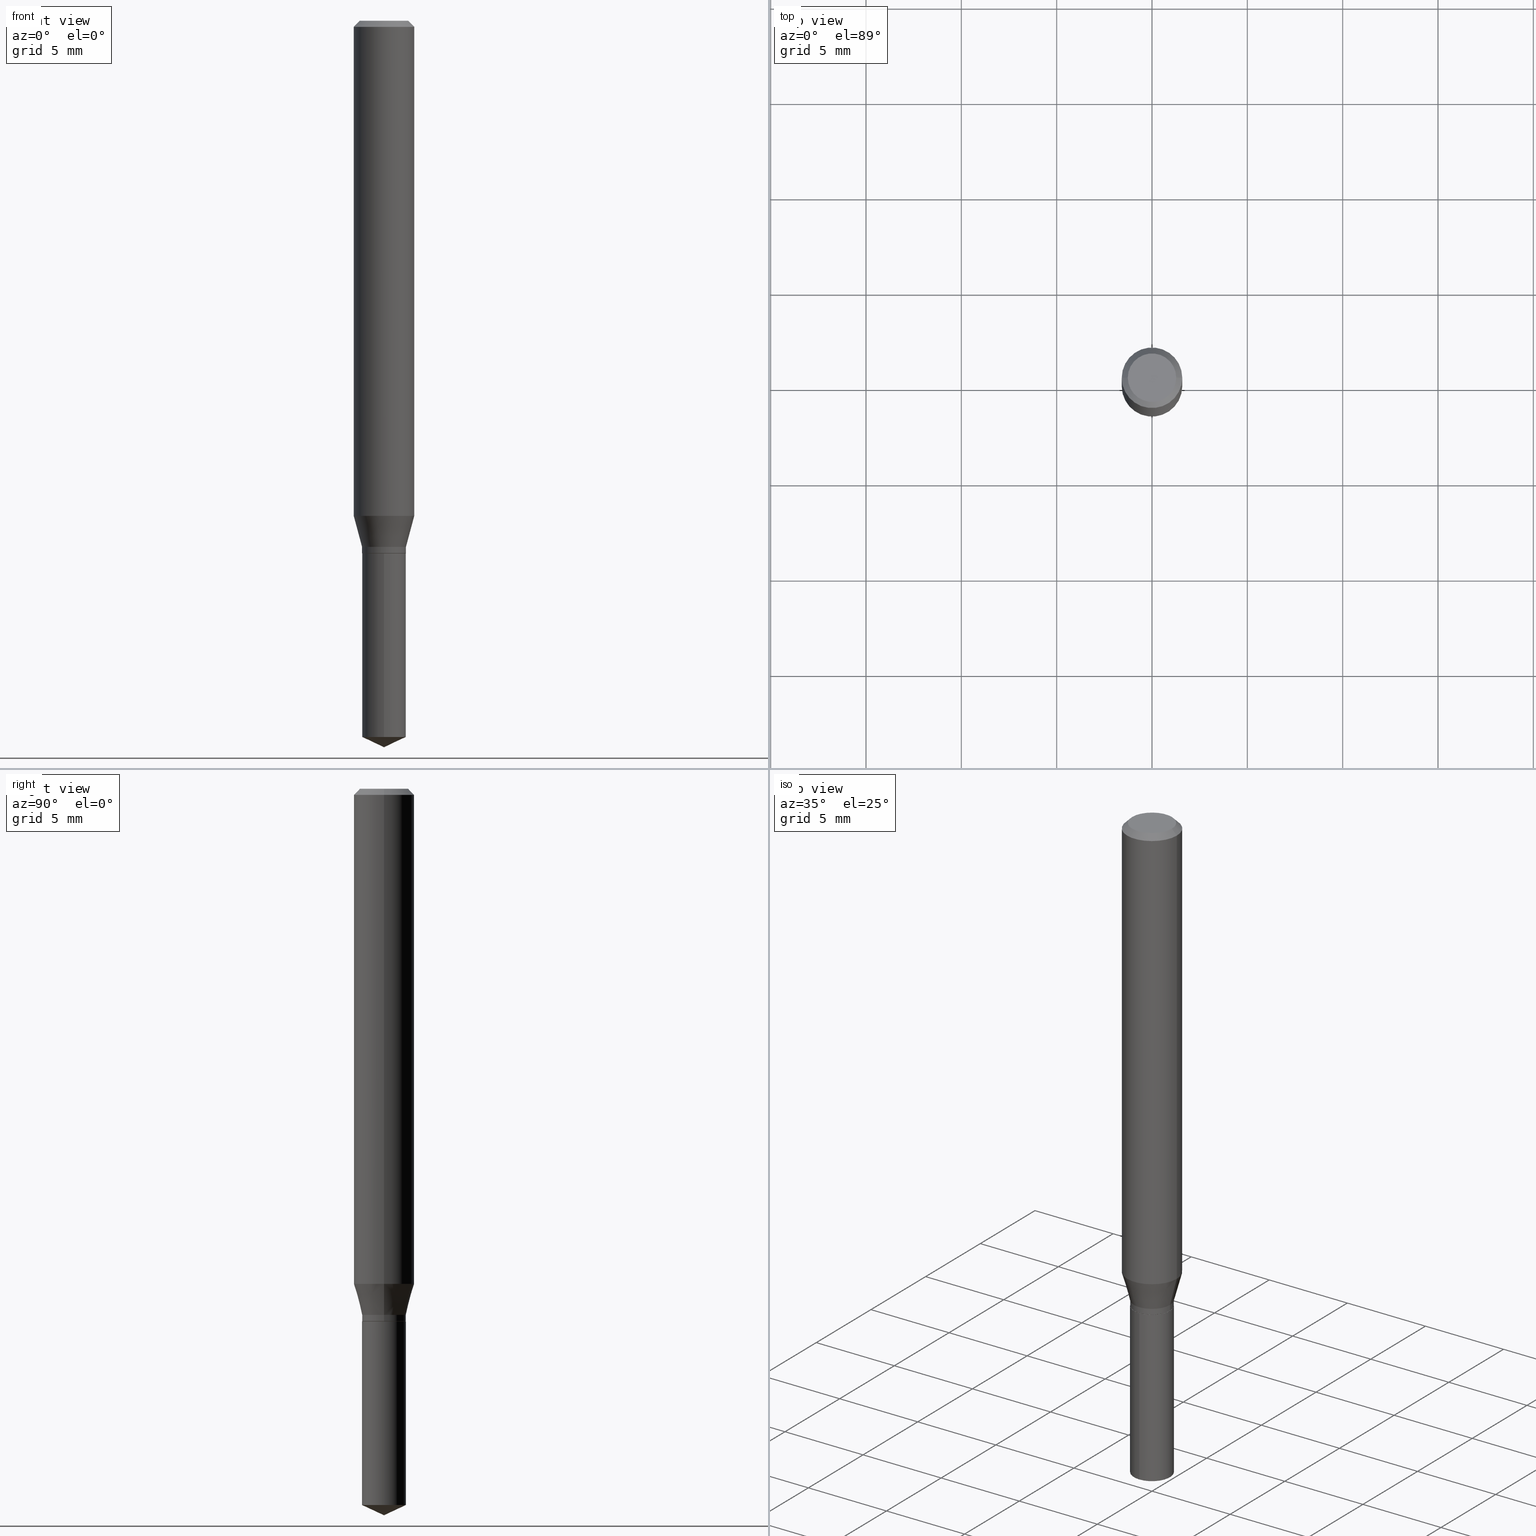
[diagram: canonical four-view strip — front | top / right | iso, engineering-drawing reading convention]
A machine part, canonical four-view strip (front | top / right | iso — engineering-drawing reading convention). The complete STEP part file that produces these views, byte-faithful:
ISO-10303-21;
HEADER;
FILE_DESCRIPTION (( 'STEP AP203' ),
    '1' );
FILE_NAME ('07199.STEP',
    '2024-04-23T19:58:30',
    ( '' ),
    ( '' ),
    'SwSTEP 2.0',
    'SolidWorks 2023',
    '' );
FILE_SCHEMA (( 'CONFIG_CONTROL_DESIGN' ));
ENDSEC;

DATA;
#1 = DIRECTION ( 'NONE',  ( 1.000000000000000000, -6.982962677686266711E-15, 4.876176775795936353E-29 ) ) ;
#2 = CARTESIAN_POINT ( 'NONE',  ( 0.04999999999999999584, -4.077247707424184705E-16, -1.592040838888913461E-18 ) ) ;
#3 = ORIENTED_EDGE ( 'NONE', *, *, #490, .T. ) ;
#4 = APPROVAL_ROLE ( '' ) ;
#5 = CARTESIAN_POINT ( 'NONE',  ( 3.218758592993522054E-16, 0.04529999999999615584, -1.100000000000000089 ) ) ;
#6 = VERTEX_POINT ( 'NONE', #390 ) ;
#7 = VECTOR ( 'NONE', #322, 39.37007874015748854 ) ;
#8 = ORIENTED_EDGE ( 'NONE', *, *, #337, .F. ) ;
#9 = COORDINATED_UNIVERSAL_TIME_OFFSET ( 5, 0, .BEHIND. ) ;
#10 = ORIENTED_EDGE ( 'NONE', *, *, #288, .T. ) ;
#11 = ORIENTED_EDGE ( 'NONE', *, *, #392, .T. ) ;
#12 = VERTEX_POINT ( 'NONE', #137 ) ;
#13 = LINE ( 'NONE', #223, #466 ) ;
#14 = DIRECTION ( 'NONE',  ( 1.000000000000000000, -6.982962677686271444E-15, 0.000000000000000000 ) ) ;
#15 = DIRECTION ( 'NONE',  ( 0.7071067811865453523, -7.319954787623248157E-15, -0.7071067811865496822 ) ) ;
#16 = CARTESIAN_POINT ( 'NONE',  ( -9.260740279983036507E-28, 1.322265303911854087E-13, 37.87007874015748143 ) ) ;
#17 = EDGE_CURVE ( 'NONE', #340, #304, #405, .T. ) ;
#18 = CARTESIAN_POINT ( 'NONE',  ( -0.04529999999999999999, 3.218758592993253841E-16, -2.228277595885472214E-30 ) ) ;
#19 = AXIS2_PLACEMENT_3D ( 'NONE', #432, #420, #310 ) ;
#20 = DIRECTION ( 'NONE',  ( 1.000000000000000000, -6.982962677686271444E-15, 0.000000000000000000 ) ) ;
#21 = AXIS2_PLACEMENT_3D ( 'NONE', #364, #103, #403 ) ;
#22 = CARTESIAN_POINT ( 'NONE',  ( 0.04479999999999999954, -4.153466200687805374E-15, -1.100000000000000089 ) ) ;
#23 = DIRECTION ( 'NONE',  ( -2.445468806185136877E-29, 3.491481338843145188E-15, 1.000000000000000000 ) ) ;
#24 = ADVANCED_FACE ( 'NONE', ( #316 ), #352, .T. ) ;
#25 = DIRECTION ( 'NONE',  ( 1.000000000000000000, -6.982962677686265922E-15, 4.875957971899673662E-29 ) ) ;
#26 = CLOSED_SHELL ( 'NONE', ( #279, #353, #139, #105, #361 ) ) ;
#27 = AXIS2_PLACEMENT_3D ( 'NONE', #174, #407, #214 ) ;
#28 = CYLINDRICAL_SURFACE ( 'NONE', #245, 0.06250000000000006939 ) ;
#29 = ORIENTED_EDGE ( 'NONE', *, *, #90, .F. ) ;
#30 = CARTESIAN_POINT ( 'NONE',  ( 0.000000000000000000, 0.000000000000000000, 0.000000000000000000 ) ) ;
#31 = PERSON ( 'UNSPECIFIED', 'UNSPECIFIED', 'UNSPECIFIED', ('UNSPECIFIED'), ('UNSPECIFIED'), ('UNSPECIFIED') ) ;
#32 = ADVANCED_FACE ( 'NONE', ( #136 ), #357, .T. ) ;
#33 = SHAPE_DEFINITION_REPRESENTATION ( #60, #232 ) ;
#34 = DIRECTION ( 'NONE',  ( 1.000000000000000000, -6.982962677686266711E-15, 4.876176775795935793E-29 ) ) ;
#35 = VERTEX_POINT ( 'NONE', #170 ) ;
#36 = CIRCLE ( 'NONE', #218, 0.04529999999999999999 ) ;
#37 = CONICAL_SURFACE ( 'NONE', #467, 0.04479999999999999954, 0.7853981633974141952 ) ;
#38 = COORDINATED_UNIVERSAL_TIME_OFFSET ( 5, 0, .BEHIND. ) ;
#39 = FACE_OUTER_BOUND ( 'NONE', #429, .T. ) ;
#40 = ORIENTED_EDGE ( 'NONE', *, *, #365, .T. ) ;
#41 = CARTESIAN_POINT ( 'NONE',  ( 2.690015686803650369E-29, -3.840629472727460101E-15, -1.100000000000000089 ) ) ;
#42 = EDGE_LOOP ( 'NONE', ( #309, #269, #197, #213 ) ) ;
#43 = DIRECTION ( 'NONE',  ( 1.000000000000000000, 0.000000000000000000, 0.000000000000000000 ) ) ;
#44 = CARTESIAN_POINT ( 'NONE',  ( 2.656757311039532670E-29, -3.793145326519194416E-15, -1.086400000000000254 ) ) ;
#45 = CC_DESIGN_PERSON_AND_ORGANIZATION_ASSIGNMENT ( #120, #123, ( #217 ) ) ;
#46 = ORIENTED_EDGE ( 'NONE', *, *, #148, .T. ) ;
#47 = CC_DESIGN_SECURITY_CLASSIFICATION ( #426, ( #141 ) ) ;
#48 = PERSON_AND_ORGANIZATION ( #31, #99 ) ;
#49 = FACE_OUTER_BOUND ( 'NONE', #250, .T. ) ;
#50 = VERTEX_POINT ( 'NONE', #281 ) ;
#51 = EDGE_LOOP ( 'NONE', ( #154, #428, #295, #344 ) ) ;
#52 = EDGE_CURVE ( 'NONE', #304, #340, #308, .T. ) ;
#53 = EDGE_LOOP ( 'NONE', ( #129, #3, #126, #385 ) ) ;
#54 = AXIS2_PLACEMENT_3D ( 'NONE', #317, #396, #200 ) ;
#55 = VECTOR ( 'NONE', #302, 39.37007874015748143 ) ;
#56 = CARTESIAN_POINT ( 'NONE',  ( 2.688792952400557567E-29, -3.838883732058038598E-15, -1.099499999999999922 ) ) ;
#57 = LINE ( 'NONE', #277, #198 ) ;
#58 = CC_DESIGN_PERSON_AND_ORGANIZATION_ASSIGNMENT ( #85, #374, ( #426 ) ) ;
#59 = CARTESIAN_POINT ( 'NONE',  ( 3.616519583258762254E-29, -5.163506375328735718E-15, -1.478876263085578735 ) ) ;
#60 = PRODUCT_DEFINITION_SHAPE ( 'NONE', 'NONE',  #217 ) ;
#61 = DIRECTION ( 'NONE',  ( -6.982962677686268288E-15, -1.000000000000000000, 3.520397390770455053E-15 ) ) ;
#62 = APPLICATION_CONTEXT ( 'configuration controlled 3d designs of mechanical parts and assemblies' ) ;
#63 = DIRECTION ( 'NONE',  ( -2.445399690415121530E-29, 3.491580316559632610E-15, 1.000000000000000000 ) ) ;
#64 =( NAMED_UNIT ( * ) SI_UNIT ( $, .STERADIAN. ) SOLID_ANGLE_UNIT ( ) );
#65 = CARTESIAN_POINT ( 'NONE',  ( 2.656757311039532670E-29, -3.793145326519194416E-15, -1.086400000000000254 ) ) ;
#66 = CONICAL_SURFACE ( 'NONE', #175, 0.04529999999999999999, 0.2617993877991498519 ) ;
#67 = DIRECTION ( 'NONE',  ( -6.982962677686266711E-15, -1.000000000000000000, 6.030569522437666757E-15 ) ) ;
#68 = EDGE_CURVE ( 'NONE', #298, #128, #152, .T. ) ;
#69 = DIRECTION ( 'NONE',  ( -6.982962677686266711E-15, -1.000000000000000000, 3.015284761218833379E-15 ) ) ;
#70 = LINE ( 'NONE', #247, #7 ) ;
#71 = AXIS2_PLACEMENT_3D ( 'NONE', #472, #243, #208 ) ;
#72 = FACE_OUTER_BOUND ( 'NONE', #268, .T. ) ;
#73 = PERSON_AND_ORGANIZATION_ROLE ( 'creator' ) ;
#74 = CARTESIAN_POINT ( 'NONE',  ( 2.690015686803650369E-29, -3.840629472727460101E-15, -1.100000000000000089 ) ) ;
#75 = DATE_TIME_ROLE ( 'creation_date' ) ;
#76 = DIRECTION ( 'NONE',  ( -2.445468806185136597E-29, 3.491481338843145583E-15, 1.000000000000000000 ) ) ;
#77 = ORIENTED_EDGE ( 'NONE', *, *, #238, .T. ) ;
#78 = AXIS2_PLACEMENT_3D ( 'NONE', #435, #296, #458 ) ;
#79 = CIRCLE ( 'NONE', #212, 0.06250000000000001388 ) ;
#80 = CARTESIAN_POINT ( 'NONE',  ( 0.04529999999999999999, -4.109473535818381906E-15, -1.086400000000000254 ) ) ;
#81 = EDGE_CURVE ( 'NONE', #448, #272, #477, .T. ) ;
#82 = DATE_TIME_ROLE ( 'classification_date' ) ;
#83 = DIRECTION ( 'NONE',  ( -2.445468806185136877E-29, 3.491481338843145188E-15, 1.000000000000000000 ) ) ;
#84 = EDGE_LOOP ( 'NONE', ( #233, #410, #8, #430 ) ) ;
#85 = PERSON_AND_ORGANIZATION ( #31, #99 ) ;
#86 = CARTESIAN_POINT ( 'NONE',  ( 0.04479999999999999954, -4.153466200687805374E-15, -1.100000000000000089 ) ) ;
#87 = ORIENTED_EDGE ( 'NONE', *, *, #323, .F. ) ;
#88 = CIRCLE ( 'NONE', #363, 0.04999999999999999584 ) ;
#89 = EDGE_LOOP ( 'NONE', ( #114, #335, #179, #196 ) ) ;
#90 = EDGE_CURVE ( 'NONE', #6, #291, #107, .T. ) ;
#91 = ORIENTED_EDGE ( 'NONE', *, *, #484, .T. ) ;
#92 = ORIENTED_EDGE ( 'NONE', *, *, #68, .T. ) ;
#93 = CC_DESIGN_APPROVAL ( #210, ( #217 ) ) ;
#94 = DIRECTION ( 'NONE',  ( 1.000000000000000000, -6.982962677686271444E-15, 0.000000000000000000 ) ) ;
#95 = DIRECTION ( 'NONE',  ( 0.2588190451025211281, 1.565188264969622954E-15, 0.9659258262890679791 ) ) ;
#96 = DIRECTION ( 'NONE',  ( -2.445399690415121530E-29, 3.491580316559632610E-15, 1.000000000000000000 ) ) ;
#97 = FACE_OUTER_BOUND ( 'NONE', #51, .T. ) ;
#98 = CYLINDRICAL_SURFACE ( 'NONE', #388, 0.04529999999999999999 ) ;
#99 = ORGANIZATION ( 'UNSPECIFIED', 'UNSPECIFIED', '' ) ;
#100 = DIRECTION ( 'NONE',  ( -2.445468806185136597E-29, 3.491481338843145583E-15, 1.000000000000000000 ) ) ;
#101 = VECTOR ( 'NONE', #334, 39.37007874015748143 ) ;
#102 = CC_DESIGN_PERSON_AND_ORGANIZATION_ASSIGNMENT ( #219, #462, ( #276 ) ) ;
#103 = DIRECTION ( 'NONE',  ( -2.445468806185136597E-29, 3.491481338843145583E-15, 1.000000000000000000 ) ) ;
#104 = DIRECTION ( 'NONE',  ( 1.000000000000000000, -6.982962677686265922E-15, 0.000000000000000000 ) ) ;
#105 = ADVANCED_FACE ( 'NONE', ( #282 ), #98, .T. ) ;
#106 = LINE ( 'NONE', #256, #270 ) ;
#107 = CIRCLE ( 'NONE', #441, 0.04529999999999999999 ) ;
#108 = APPLICATION_CONTEXT ( 'configuration controlled 3d designs of mechanical parts and assemblies' ) ;
#109 = APPROVAL_DATE_TIME ( #377, #402 ) ;
#110 = DIRECTION ( 'NONE',  ( -2.445468806185136597E-29, 3.491481338843145583E-15, 1.000000000000000000 ) ) ;
#111 = ORIENTED_EDGE ( 'NONE', *, *, #337, .T. ) ;
#112 = SECURITY_CLASSIFICATION_LEVEL ( 'unclassified' ) ;
#113 = DIRECTION ( 'NONE',  ( -2.445468806185136597E-29, 3.491481338843145583E-15, 1.000000000000000000 ) ) ;
#114 = ORIENTED_EDGE ( 'NONE', *, *, #431, .T. ) ;
#115 = PERSON_AND_ORGANIZATION ( #31, #99 ) ;
#116 = LINE ( 'NONE', #5, #306 ) ;
#117 = CIRCLE ( 'NONE', #456, 0.04999999999999999584 ) ;
#118 = EDGE_CURVE ( 'NONE', #291, #6, #406, .T. ) ;
#119 = CONICAL_SURFACE ( 'NONE', #236, 84.42940631927430672, 1.134464013796315784 ) ;
#120 = PERSON_AND_ORGANIZATION ( #31, #99 ) ;
#121 = FACE_OUTER_BOUND ( 'NONE', #332, .T. ) ;
#122 = ORIENTED_EDGE ( 'NONE', *, *, #418, .T. ) ;
#123 = PERSON_AND_ORGANIZATION_ROLE ( 'creator' ) ;
#124 = DIRECTION ( 'NONE',  ( 2.445399690415121250E-29, -3.491580316559632610E-15, -1.000000000000000000 ) ) ;
#125 = EDGE_LOOP ( 'NONE', ( #369, #161, #271, #483 ) ) ;
#126 = ORIENTED_EDGE ( 'NONE', *, *, #81, .T. ) ;
#127 = APPROVAL_PERSON_ORGANIZATION ( #48, #210, #4 ) ;
#128 = VERTEX_POINT ( 'NONE', #311 ) ;
#129 = ORIENTED_EDGE ( 'NONE', *, *, #164, .F. ) ;
#130 = DIRECTION ( 'NONE',  ( 1.000000000000000000, -6.982962677686266711E-15, 4.876176775795936353E-29 ) ) ;
#131 = EDGE_CURVE ( 'NONE', #451, #234, #221, .T. ) ;
#132 = CARTESIAN_POINT ( 'NONE',  ( 0.04529999999999999999, -4.155211941357226089E-15, -1.099499999999999922 ) ) ;
#133 = CARTESIAN_POINT ( 'NONE',  ( 2.690015686803650369E-29, -3.840629472727460101E-15, -1.100000000000000089 ) ) ;
#134 =( NAMED_UNIT ( * ) PLANE_ANGLE_UNIT ( ) SI_UNIT ( $, .RADIAN. ) );
#135 = LINE ( 'NONE', #22, #143 ) ;
#136 = FACE_OUTER_BOUND ( 'NONE', #53, .T. ) ;
#137 = CARTESIAN_POINT ( 'NONE',  ( -0.06250000000000012490, -3.124933481764980273E-15, -1.022208726109815169 ) ) ;
#138 = CARTESIAN_POINT ( 'NONE',  ( -0.04529999999999999999, -3.494138669989291073E-15, -1.099499999999999922 ) ) ;
#139 = ADVANCED_FACE ( 'NONE', ( #235 ), #384, .T. ) ;
#140 = CARTESIAN_POINT ( 'NONE',  ( 0.06250000000000012490, -4.005457858970436136E-15, -1.022208726109815169 ) ) ;
#141 = PRODUCT_DEFINITION_FORMATION_WITH_SPECIFIED_SOURCE ( 'ANY', '', #276, .NOT_KNOWN. ) ;
#142 = DIRECTION ( 'NONE',  ( -2.438088387897960049E-29, 3.491481338843145188E-15, 1.000000000000000000 ) ) ;
#143 = VECTOR ( 'NONE', #395, 39.37007874015748854 ) ;
#144 = APPROVAL_DATE_TIME ( #343, #182 ) ;
#145 = DIRECTION ( 'NONE',  ( 1.000000000000000000, -6.982962677686269866E-15, 0.000000000000000000 ) ) ;
#146 = ORIENTED_EDGE ( 'NONE', *, *, #484, .F. ) ;
#147 = CARTESIAN_POINT ( 'NONE',  ( 2.690015686803650369E-29, -3.840629472727460101E-15, -1.100000000000000089 ) ) ;
#148 = EDGE_CURVE ( 'NONE', #272, #303, #204, .T. ) ;
#149 = ORIENTED_EDGE ( 'NONE', *, *, #176, .F. ) ;
#150 = DIRECTION ( 'NONE',  ( -2.445468806185136877E-29, 3.491481338843145188E-15, 1.000000000000000000 ) ) ;
#151 = ORIENTED_EDGE ( 'NONE', *, *, #305, .T. ) ;
#152 = CIRCLE ( 'NONE', #415, 0.04529999999999999999 ) ;
#153 = DIRECTION ( 'NONE',  ( 6.982962677686265922E-15, 1.000000000000000000, -3.491580316559632610E-15 ) ) ;
#154 = ORIENTED_EDGE ( 'NONE', *, *, #17, .T. ) ;
#155 = DIMENSIONAL_EXPONENTS ( 1.000000000000000000, 0.000000000000000000, 0.000000000000000000, 0.000000000000000000, 0.000000000000000000, 0.000000000000000000, 0.000000000000000000 ) ;
#156 = ADVANCED_FACE ( 'NONE', ( #171 ), #66, .T. ) ;
#157 = ORIENTED_EDGE ( 'NONE', *, *, #52, .T. ) ;
#158 = ORIENTED_EDGE ( 'NONE', *, *, #323, .T. ) ;
#159 = CC_DESIGN_APPROVAL ( #402, ( #141 ) ) ;
#160 = VECTOR ( 'NONE', #95, 39.37007874015748854 ) ;
#161 = ORIENTED_EDGE ( 'NONE', *, *, #226, .T. ) ;
#162 = CYLINDRICAL_SURFACE ( 'NONE', #19, 0.06250000000000006939 ) ;
#163 = DIRECTION ( 'NONE',  ( -6.982962677686268288E-15, -1.000000000000000000, 3.520397390770455053E-15 ) ) ;
#164 = EDGE_CURVE ( 'NONE', #338, #12, #479, .T. ) ;
#165 = FACE_OUTER_BOUND ( 'NONE', #413, .T. ) ;
#166 = FACE_OUTER_BOUND ( 'NONE', #387, .T. ) ;
#167 = CIRCLE ( 'NONE', #399, 0.04479999999999999954 ) ;
#168 = CARTESIAN_POINT ( 'NONE',  ( -0.04529999999999999999, -3.471269467219868588E-15, -1.086400000000000254 ) ) ;
#169 = UNCERTAINTY_MEASURE_WITH_UNIT (LENGTH_MEASURE( 1.000000000000000082E-05 ), #354, 'distance_accuracy_value', 'NONE');
#170 = CARTESIAN_POINT ( 'NONE',  ( -0.06250000000000001388, -1.362243894325228017E-15, -0.01250000000000008916 ) ) ;
#171 = FACE_OUTER_BOUND ( 'NONE', #89, .T. ) ;
#172 = CC_DESIGN_APPROVAL ( #182, ( #426 ) ) ;
#173 = AXIS2_PLACEMENT_3D ( 'NONE', #194, #225, #313 ) ;
#174 = CARTESIAN_POINT ( 'NONE',  ( 2.690015686803650369E-29, -3.840629472727460101E-15, -1.100000000000000089 ) ) ;
#175 = AXIS2_PLACEMENT_3D ( 'NONE', #319, #202, #20 ) ;
#176 = EDGE_CURVE ( 'NONE', #451, #340, #135, .T. ) ;
#177 = CARTESIAN_POINT ( 'NONE',  ( 3.893286209682126177E-47, -5.558580879666067980E-33, -1.592040838891559689E-18 ) ) ;
#178 = DIRECTION ( 'NONE',  ( 2.445468806185136597E-29, -3.491481338843145583E-15, -1.000000000000000000 ) ) ;
#179 = ORIENTED_EDGE ( 'NONE', *, *, #398, .F. ) ;
#180 = CARTESIAN_POINT ( 'NONE',  ( 2.690015686803650369E-29, -3.840629472727460101E-15, -1.100000000000000089 ) ) ;
#181 = EDGE_LOOP ( 'NONE', ( #257, #40, #29 ) ) ;
#182 = APPROVAL ( #215, 'UNSPECIFIED' ) ;
#183 = DIRECTION ( 'NONE',  ( 1.000000000000000000, -6.982962677686265922E-15, 4.875957971899673662E-29 ) ) ;
#184 = CARTESIAN_POINT ( 'NONE',  ( 2.499779553111798848E-29, -3.569022691615043678E-15, -1.022208726109815169 ) ) ;
#185 = ADVANCED_FACE ( 'NONE', ( #165 ), #242, .F. ) ;
#186 = EDGE_LOOP ( 'NONE', ( #190, #195 ) ) ;
#187 = CARTESIAN_POINT ( 'NONE',  ( 0.000000000000000000, 0.000000000000000000, 0.000000000000000000 ) ) ;
#188 = DIRECTION ( 'NONE',  ( -0.7071067811865232589, 7.493145998870265808E-15, 0.7071067811865715536 ) ) ;
#189 = CIRCLE ( 'NONE', #173, 0.06250000000000001388 ) ;
#190 = ORIENTED_EDGE ( 'NONE', *, *, #131, .F. ) ;
#191 = ADVANCED_FACE ( 'NONE', ( #97 ), #209, .T. ) ;
#192 = AXIS2_PLACEMENT_3D ( 'NONE', #30, #113, #1 ) ;
#193 = CALENDAR_DATE ( 2024, 23, 4 ) ;
#194 = CARTESIAN_POINT ( 'NONE',  ( 3.056836007731442729E-31, -4.364351673553962300E-17, -0.01250000000000008916 ) ) ;
#195 = ORIENTED_EDGE ( 'NONE', *, *, #226, .F. ) ;
#196 = ORIENTED_EDGE ( 'NONE', *, *, #81, .F. ) ;
#197 = ORIENTED_EDGE ( 'NONE', *, *, #470, .T. ) ;
#198 = VECTOR ( 'NONE', #15, 39.37007874015748143 ) ;
#199 = ADVANCED_FACE ( 'NONE', ( #450 ), #254, .F. ) ;
#200 = DIRECTION ( 'NONE',  ( 1.000000000000000000, -6.982962677686271444E-15, 0.000000000000000000 ) ) ;
#201 = LINE ( 'NONE', #18, #348 ) ;
#202 = DIRECTION ( 'NONE',  ( -2.445468806185136597E-29, 3.491481338843145583E-15, 1.000000000000000000 ) ) ;
#203 = DIRECTION ( 'NONE',  ( -2.445399690415121810E-29, 3.491580316559632610E-15, 1.000000000000000000 ) ) ;
#204 = LINE ( 'NONE', #393, #341 ) ;
#205 = EDGE_CURVE ( 'NONE', #12, #35, #106, .T. ) ;
#206 = LOCAL_TIME ( 15, 58, 30.00000000000000000, #289 ) ;
#207 = DIRECTION ( 'NONE',  ( -6.982962677686266711E-15, -1.000000000000000000, 3.015284761218833379E-15 ) ) ;
#208 = DIRECTION ( 'NONE',  ( 1.000000000000000000, -6.982962677686269866E-15, 0.000000000000000000 ) ) ;
#209 = CYLINDRICAL_SURFACE ( 'NONE', #192, 0.04529999999999999999 ) ;
#210 = APPROVAL ( #411, 'UNSPECIFIED' ) ;
#211 = FACE_OUTER_BOUND ( 'NONE', #487, .T. ) ;
#212 = AXIS2_PLACEMENT_3D ( 'NONE', #285, #443, #104 ) ;
#213 = ORIENTED_EDGE ( 'NONE', *, *, #373, .F. ) ;
#214 = DIRECTION ( 'NONE',  ( 1.000000000000000000, -6.982962677686269866E-15, 0.000000000000000000 ) ) ;
#215 = APPROVAL_STATUS ( 'not_yet_approved' ) ;
#216 = FACE_OUTER_BOUND ( 'NONE', #84, .T. ) ;
#217 = PRODUCT_DEFINITION ( 'UNKNOWN', '', #141, #318 ) ;
#218 = AXIS2_PLACEMENT_3D ( 'NONE', #44, #473, #94 ) ;
#219 = PERSON_AND_ORGANIZATION ( #31, #99 ) ;
#220 = CARTESIAN_POINT ( 'NONE',  ( 0.000000000000000000, 0.000000000000000000, 0.000000000000000000 ) ) ;
#221 = CIRCLE ( 'NONE', #71, 0.04479999999999999954 ) ;
#222 = APPROVAL_DATE_TIME ( #333, #210 ) ;
#223 = CARTESIAN_POINT ( 'NONE',  ( 3.668099535622682155E-29, -5.237370474839448718E-15, -1.500000000000000222 ) ) ;
#224 = DATE_AND_TIME ( #446, #370 ) ;
#225 = DIRECTION ( 'NONE',  ( -2.445468806185136597E-29, 3.491481338843145583E-15, 1.000000000000000000 ) ) ;
#226 = EDGE_CURVE ( 'NONE', #234, #451, #167, .T. ) ;
#227 = ORIENTED_EDGE ( 'NONE', *, *, #131, .T. ) ;
#228 = APPROVAL_ROLE ( '' ) ;
#229 = LINE ( 'NONE', #240, #55 ) ;
#230 = CIRCLE ( 'NONE', #346, 0.06250000000000012490 ) ;
#231 = EDGE_LOOP ( 'NONE', ( #386, #151, #459 ) ) ;
#232 = ADVANCED_BREP_SHAPE_REPRESENTATION ( '07199', ( #460, #294, #356 ), #328 ) ;
#233 = ORIENTED_EDGE ( 'NONE', *, *, #398, .T. ) ;
#234 = VERTEX_POINT ( 'NONE', #360 ) ;
#235 = FACE_OUTER_BOUND ( 'NONE', #181, .T. ) ;
#236 = AXIS2_PLACEMENT_3D ( 'NONE', #375, #267, #61 ) ;
#237 = LINE ( 'NONE', #383, #455 ) ;
#238 = EDGE_CURVE ( 'NONE', #12, #272, #262, .T. ) ;
#239 = CARTESIAN_POINT ( 'NONE',  ( 2.690015686803650369E-29, -3.840629472727460101E-15, -1.100000000000000089 ) ) ;
#240 = CARTESIAN_POINT ( 'NONE',  ( -3.163282092991610146E-16, -0.04530000000000384414, -1.099999999999999867 ) ) ;
#241 = CC_DESIGN_PERSON_AND_ORGANIZATION_ASSIGNMENT ( #115, #452, ( #141 ) ) ;
#242 = PLANE ( 'NONE',  #427 ) ;
#243 = DIRECTION ( 'NONE',  ( -2.445468806185136597E-29, 3.491481338843145583E-15, 1.000000000000000000 ) ) ;
#244 = AXIS2_PLACEMENT_3D ( 'NONE', #336, #391, #417 ) ;
#245 = AXIS2_PLACEMENT_3D ( 'NONE', #220, #368, #34 ) ;
#246 = DIRECTION ( 'NONE',  ( -2.445399690415121530E-29, 3.491580316559632610E-15, 1.000000000000000000 ) ) ;
#247 = CARTESIAN_POINT ( 'NONE',  ( 3.668252923656895710E-29, -5.237152723863177100E-15, -1.500000000000000222 ) ) ;
#248 = ADVANCED_FACE ( 'NONE', ( #72 ), #481, .T. ) ;
#249 = CARTESIAN_POINT ( 'NONE',  ( -0.04529999999999999999, -3.494138669989291073E-15, -1.086400000000000254 ) ) ;
#250 = EDGE_LOOP ( 'NONE', ( #347, #77, #46, #404 ) ) ;
#251 = LINE ( 'NONE', #401, #101 ) ;
#252 = ADVANCED_FACE ( 'NONE', ( #371 ), #37, .T. ) ;
#253 = COORDINATED_UNIVERSAL_TIME_OFFSET ( 5, 0, .BEHIND. ) ;
#254 = PLANE ( 'NONE',  #476 ) ;
#255 = ORIENTED_EDGE ( 'NONE', *, *, #68, .F. ) ;
#256 = CARTESIAN_POINT ( 'NONE',  ( -0.06250000000000006939, 4.440892098500631092E-16, -3.074334431409319267E-30 ) ) ;
#257 = ORIENTED_EDGE ( 'NONE', *, *, #305, .F. ) ;
#258 = VECTOR ( 'NONE', #280, 39.37007874015748854 ) ;
#259 = APPROVAL_PERSON_ORGANIZATION ( #416, #182, #228 ) ;
#260 = DATE_AND_TIME ( #422, #480 ) ;
#261 = FACE_OUTER_BOUND ( 'NONE', #231, .T. ) ;
#262 = CIRCLE ( 'NONE', #21, 0.06250000000000012490 ) ;
#263 = MECHANICAL_CONTEXT ( 'NONE', #62, 'mechanical' ) ;
#264 = ORIENTED_EDGE ( 'NONE', *, *, #284, .F. ) ;
#265 = ADVANCED_FACE ( 'NONE', ( #216 ), #28, .T. ) ;
#266 = APPROVAL_STATUS ( 'not_yet_approved' ) ;
#267 = DIRECTION ( 'NONE',  ( -2.445399690415121530E-29, 3.491580316559632610E-15, 1.000000000000000000 ) ) ;
#268 = EDGE_LOOP ( 'NONE', ( #146, #87, #376, #122 ) ) ;
#269 = ORIENTED_EDGE ( 'NONE', *, *, #90, .T. ) ;
#270 = VECTOR ( 'NONE', #293, 39.37007874015748143 ) ;
#271 = ORIENTED_EDGE ( 'NONE', *, *, #176, .T. ) ;
#272 = VERTEX_POINT ( 'NONE', #140 ) ;
#273 = DIRECTION ( 'NONE',  ( -6.982962677686266711E-15, -1.000000000000000000, 3.015284761218833379E-15 ) ) ;
#274 = VERTEX_POINT ( 'NONE', #292 ) ;
#275 = LOCAL_TIME ( 15, 58, 30.00000000000000000, #38 ) ;
#276 = PRODUCT ( '07199', '07199', '', ( #263 ) ) ;
#277 = CARTESIAN_POINT ( 'NONE',  ( 0.06250000000000001388, -4.724246415962604812E-16, -0.01250000000000008916 ) ) ;
#278 = AXIS2_PLACEMENT_3D ( 'NONE', #65, #475, #14 ) ;
#279 = ADVANCED_FACE ( 'NONE', ( #211 ), #286, .T. ) ;
#280 = DIRECTION ( 'NONE',  ( -0.2588190451025211281, 5.211531920934547886E-15, 0.9659258262890679791 ) ) ;
#281 = CARTESIAN_POINT ( 'NONE',  ( 3.668099535622682715E-29, -5.237370474839449507E-15, -1.500000000000000222 ) ) ;
#282 = FACE_OUTER_BOUND ( 'NONE', #42, .T. ) ;
#283 = DIRECTION ( 'NONE',  ( 2.438088387897960049E-29, -3.491481338843145188E-15, -1.000000000000000000 ) ) ;
#284 = EDGE_CURVE ( 'NONE', #274, #35, #251, .T. ) ;
#285 = CARTESIAN_POINT ( 'NONE',  ( 3.056836007731442729E-31, -4.364351673553962300E-17, -0.01250000000000008916 ) ) ;
#286 = CYLINDRICAL_SURFACE ( 'NONE', #320, 0.04529999999999999999 ) ;
#287 = CIRCLE ( 'NONE', #78, 0.04529999999999999999 ) ;
#288 = EDGE_CURVE ( 'NONE', #327, #274, #88, .T. ) ;
#289 = COORDINATED_UNIVERSAL_TIME_OFFSET ( 5, 0, .BEHIND. ) ;
#290 = DIRECTION ( 'NONE',  ( -2.445468806185136597E-29, 3.491481338843145583E-15, 1.000000000000000000 ) ) ;
#291 = VERTEX_POINT ( 'NONE', #326 ) ;
#292 = CARTESIAN_POINT ( 'NONE',  ( -0.04999999999999999584, 3.709698922520826725E-16, -1.592040838894077649E-18 ) ) ;
#293 = DIRECTION ( 'NONE',  ( -2.445468806185136877E-29, 3.491481338843145188E-15, 1.000000000000000000 ) ) ;
#294 = MANIFOLD_SOLID_BREP ( 'Body-Move/Copy2[2]', #297 ) ;
#295 = ORIENTED_EDGE ( 'NONE', *, *, #431, .F. ) ;
#296 = DIRECTION ( 'NONE',  ( -2.445468806185136597E-29, 3.491481338843145583E-15, 1.000000000000000000 ) ) ;
#297 = CLOSED_SHELL ( 'NONE', ( #300, #414, #265, #156, #191, #24, #32, #474, #248, #185, #199, #252 ) ) ;
#298 = VERTEX_POINT ( 'NONE', #324 ) ;
#299 = AXIS2_PLACEMENT_3D ( 'NONE', #16, #358, #163 ) ;
#300 = ADVANCED_FACE ( 'NONE', ( #39 ), #434, .T. ) ;
#301 = APPLICATION_PROTOCOL_DEFINITION ( 'international standard', 'config_control_design', 1994, #108 ) ;
#302 = DIRECTION ( 'NONE',  ( -2.445399690415121810E-29, 3.491580316559632610E-15, 1.000000000000000000 ) ) ;
#303 = VERTEX_POINT ( 'NONE', #486 ) ;
#304 = VERTEX_POINT ( 'NONE', #138 ) ;
#305 = EDGE_CURVE ( 'NONE', #50, #6, #70, .T. ) ;
#306 = VECTOR ( 'NONE', #203, 39.37007874015748143 ) ;
#307 = ORIENTED_EDGE ( 'NONE', *, *, #470, .F. ) ;
#308 = CIRCLE ( 'NONE', #54, 0.04529999999999999999 ) ;
#309 = ORIENTED_EDGE ( 'NONE', *, *, #461, .F. ) ;
#310 = DIRECTION ( 'NONE',  ( 1.000000000000000000, -6.982962677686266711E-15, 4.876176775795935793E-29 ) ) ;
#311 = CARTESIAN_POINT ( 'NONE',  ( 3.218758592993615238E-16, 0.04529999999999615584, -1.100000000000000089 ) ) ;
#312 = CC_DESIGN_PERSON_AND_ORGANIZATION_ASSIGNMENT ( #408, #73, ( #141 ) ) ;
#313 = DIRECTION ( 'NONE',  ( 1.000000000000000000, -6.982962677686265922E-15, 0.000000000000000000 ) ) ;
#314 = CARTESIAN_POINT ( 'NONE',  ( 1.946643104841063088E-47, -2.779290439833033990E-33, -7.960204194457798443E-19 ) ) ;
#315 = APPLICATION_PROTOCOL_DEFINITION ( 'international standard', 'config_control_design', 1994, #62 ) ;
#316 = FACE_OUTER_BOUND ( 'NONE', #379, .T. ) ;
#317 = CARTESIAN_POINT ( 'NONE',  ( 2.688792952400557567E-29, -3.838883732058038598E-15, -1.099499999999999922 ) ) ;
#318 = DESIGN_CONTEXT ( 'detailed design', #108, 'design' ) ;
#319 = CARTESIAN_POINT ( 'NONE',  ( 2.656757311039532670E-29, -3.793145326519194416E-15, -1.086400000000000254 ) ) ;
#320 = AXIS2_PLACEMENT_3D ( 'NONE', #180, #331, #69 ) ;
#321 = AXIS2_PLACEMENT_3D ( 'NONE', #378, #124, #153 ) ;
#322 = DIRECTION ( 'NONE',  ( 6.439704144417028775E-15, 0.9063077870366521571, 0.4226182617406948894 ) ) ;
#323 = EDGE_CURVE ( 'NONE', #274, #327, #117, .T. ) ;
#324 = CARTESIAN_POINT ( 'NONE',  ( -3.163282092991610146E-16, -0.04530000000000384414, -1.099999999999999867 ) ) ;
#325 = CC_DESIGN_DATE_AND_TIME_ASSIGNMENT ( #260, #82, ( #426 ) ) ;
#326 = CARTESIAN_POINT ( 'NONE',  ( -3.163282092991516468E-16, -0.04530000000000517640, -1.478876263085578513 ) ) ;
#327 = VERTEX_POINT ( 'NONE', #2 ) ;
#328 =( GEOMETRIC_REPRESENTATION_CONTEXT ( 3 ) GLOBAL_UNCERTAINTY_ASSIGNED_CONTEXT ( ( #169 ) ) GLOBAL_UNIT_ASSIGNED_CONTEXT ( ( #354, #134, #64 ) ) REPRESENTATION_CONTEXT ( 'NONE', 'WORKASPACE' ) );
#329 = AXIS2_PLACEMENT_3D ( 'NONE', #366, #178, #445 ) ;
#330 = APPROVAL_ROLE ( '' ) ;
#331 = DIRECTION ( 'NONE',  ( -2.445399690415121530E-29, 3.491580316559632610E-15, 1.000000000000000000 ) ) ;
#332 = EDGE_LOOP ( 'NONE', ( #92, #465 ) ) ;
#333 = DATE_AND_TIME ( #419, #275 ) ;
#334 = DIRECTION ( 'NONE',  ( -0.7071067811865453523, 2.468850131082234184E-15, -0.7071067811865496822 ) ) ;
#335 = ORIENTED_EDGE ( 'NONE', *, *, #164, .T. ) ;
#336 = CARTESIAN_POINT ( 'NONE',  ( 3.056836007731442729E-31, -4.364351673553962300E-17, -0.01250000000000008916 ) ) ;
#337 = EDGE_CURVE ( 'NONE', #303, #35, #79, .T. ) ;
#338 = VERTEX_POINT ( 'NONE', #249 ) ;
#339 = CARTESIAN_POINT ( 'NONE',  ( 0.04529999999999999999, -3.163282092991878851E-16, 2.208908079435559189E-30 ) ) ;
#340 = VERTEX_POINT ( 'NONE', #132 ) ;
#341 = VECTOR ( 'NONE', #23, 39.37007874015748143 ) ;
#342 = EDGE_CURVE ( 'NONE', #304, #338, #201, .T. ) ;
#343 = DATE_AND_TIME ( #381, #206 ) ;
#344 = ORIENTED_EDGE ( 'NONE', *, *, #392, .F. ) ;
#345 = ORIENTED_EDGE ( 'NONE', *, *, #288, .F. ) ;
#346 = AXIS2_PLACEMENT_3D ( 'NONE', #184, #471, #351 ) ;
#347 = ORIENTED_EDGE ( 'NONE', *, *, #205, .F. ) ;
#348 = VECTOR ( 'NONE', #83, 39.37007874015748143 ) ;
#349 = PLANE ( 'NONE',  #321 ) ;
#350 = CARTESIAN_POINT ( 'NONE',  ( 3.616519583258762254E-29, -5.163506375328735718E-15, -1.478876263085578735 ) ) ;
#351 = DIRECTION ( 'NONE',  ( 1.000000000000000000, -6.982962677686264344E-15, 0.000000000000000000 ) ) ;
#352 = CYLINDRICAL_SURFACE ( 'NONE', #382, 0.04529999999999999999 ) ;
#353 = ADVANCED_FACE ( 'NONE', ( #261 ), #119, .T. ) ;
#354 =( CONVERSION_BASED_UNIT ( 'INCH', #463 ) LENGTH_UNIT ( ) NAMED_UNIT ( #155 ) );
#355 = DIRECTION ( 'NONE',  ( -6.982962677686266711E-15, -1.000000000000000000, 6.030569522437666757E-15 ) ) ;
#356 = AXIS2_PLACEMENT_3D ( 'NONE', #187, #449, #43 ) ;
#357 = CONICAL_SURFACE ( 'NONE', #278, 0.04529999999999999999, 0.2617993877991498519 ) ;
#358 = DIRECTION ( 'NONE',  ( -2.445399690415121530E-29, 3.491580316559632610E-15, 1.000000000000000000 ) ) ;
#359 = DIRECTION ( 'NONE',  ( -2.445399690415121530E-29, 3.491580316559632610E-15, 1.000000000000000000 ) ) ;
#360 = CARTESIAN_POINT ( 'NONE',  ( -0.04479999999999999954, -3.519657099932823971E-15, -1.100000000000000089 ) ) ;
#361 = ADVANCED_FACE ( 'NONE', ( #121 ), #349, .F. ) ;
#362 = AXIS2_PLACEMENT_3D ( 'NONE', #56, #478, #439 ) ;
#363 = AXIS2_PLACEMENT_3D ( 'NONE', #177, #290, #25 ) ;
#364 = CARTESIAN_POINT ( 'NONE',  ( 2.499779553111798848E-29, -3.569022691615043678E-15, -1.022208726109815169 ) ) ;
#365 = EDGE_CURVE ( 'NONE', #50, #291, #13, .T. ) ;
#366 = CARTESIAN_POINT ( 'NONE',  ( 3.056836007731442729E-31, -4.364351673553962300E-17, -0.01250000000000008916 ) ) ;
#367 = COORDINATED_UNIVERSAL_TIME_OFFSET ( 5, 0, .BEHIND. ) ;
#368 = DIRECTION ( 'NONE',  ( -2.445468806185136597E-29, 3.491481338843145583E-15, 1.000000000000000000 ) ) ;
#369 = ORIENTED_EDGE ( 'NONE', *, *, #444, .F. ) ;
#370 = LOCAL_TIME ( 15, 58, 30.00000000000000000, #253 ) ;
#371 = FACE_OUTER_BOUND ( 'NONE', #125, .T. ) ;
#372 = ORIENTED_EDGE ( 'NONE', *, *, #342, .F. ) ;
#373 = EDGE_CURVE ( 'NONE', #128, #298, #389, .T. ) ;
#374 = PERSON_AND_ORGANIZATION_ROLE ( 'classification_officer' ) ;
#375 = CARTESIAN_POINT ( 'NONE',  ( -9.260740279983036507E-28, 1.322265303911854087E-13, 37.87007874015748143 ) ) ;
#376 = ORIENTED_EDGE ( 'NONE', *, *, #284, .T. ) ;
#377 = DATE_AND_TIME ( #193, #380 ) ;
#378 = CARTESIAN_POINT ( 'NONE',  ( 2.690015686803650369E-29, -3.840629472727460101E-15, -1.100000000000000089 ) ) ;
#379 = EDGE_LOOP ( 'NONE', ( #372, #157, #11, #469 ) ) ;
#380 = LOCAL_TIME ( 15, 58, 30.00000000000000000, #9 ) ;
#381 = CALENDAR_DATE ( 2024, 23, 4 ) ;
#382 = AXIS2_PLACEMENT_3D ( 'NONE', #442, #100, #130 ) ;
#383 = CARTESIAN_POINT ( 'NONE',  ( -0.04479999999999999954, -3.522306327106935172E-15, -1.100000000000000089 ) ) ;
#384 = CONICAL_SURFACE ( 'NONE', #299, 84.42940631927430672, 1.134464013796315784 ) ;
#385 = ORIENTED_EDGE ( 'NONE', *, *, #238, .F. ) ;
#386 = ORIENTED_EDGE ( 'NONE', *, *, #365, .F. ) ;
#387 = EDGE_LOOP ( 'NONE', ( #345, #91, #111, #264 ) ) ;
#388 = AXIS2_PLACEMENT_3D ( 'NONE', #133, #246, #207 ) ;
#389 = CIRCLE ( 'NONE', #440, 0.04529999999999999999 ) ;
#390 = CARTESIAN_POINT ( 'NONE',  ( 3.218758592993615238E-16, 0.04529999999999483051, -1.478876263085578957 ) ) ;
#391 = DIRECTION ( 'NONE',  ( 2.445468806185136597E-29, -3.491481338843145583E-15, -1.000000000000000000 ) ) ;
#392 = EDGE_CURVE ( 'NONE', #340, #448, #423, .T. ) ;
#393 = CARTESIAN_POINT ( 'NONE',  ( 0.06250000000000006939, -4.364351673553921624E-16, 3.047610484872463374E-30 ) ) ;
#394 =( LENGTH_UNIT ( ) NAMED_UNIT ( * ) SI_UNIT ( $, .METRE. ) );
#395 = DIRECTION ( 'NONE',  ( 0.7071067811865232589, -2.468850131082003836E-15, 0.7071067811865715536 ) ) ;
#396 = DIRECTION ( 'NONE',  ( -2.445468806185136597E-29, 3.491481338843145583E-15, 1.000000000000000000 ) ) ;
#397 = APPROVAL_PERSON_ORGANIZATION ( #457, #402, #330 ) ;
#398 = EDGE_CURVE ( 'NONE', #272, #12, #230, .T. ) ;
#399 = AXIS2_PLACEMENT_3D ( 'NONE', #412, #482, #409 ) ;
#400 = DIRECTION ( 'NONE',  ( -2.445399690415121530E-29, 3.491580316559632610E-15, 1.000000000000000000 ) ) ;
#401 = CARTESIAN_POINT ( 'NONE',  ( -0.06250000000000001388, 3.927916506198521080E-16, -0.01250000000000008916 ) ) ;
#402 = APPROVAL ( #266, 'UNSPECIFIED' ) ;
#403 = DIRECTION ( 'NONE',  ( 1.000000000000000000, -6.982962677686264344E-15, 0.000000000000000000 ) ) ;
#404 = ORIENTED_EDGE ( 'NONE', *, *, #418, .F. ) ;
#405 = CIRCLE ( 'NONE', #362, 0.04529999999999999999 ) ;
#406 = CIRCLE ( 'NONE', #489, 0.04529999999999999999 ) ;
#407 = DIRECTION ( 'NONE',  ( -2.445468806185136597E-29, 3.491481338843145583E-15, 1.000000000000000000 ) ) ;
#408 = PERSON_AND_ORGANIZATION ( #31, #99 ) ;
#409 = DIRECTION ( 'NONE',  ( 1.000000000000000000, -6.982962677686269866E-15, 0.000000000000000000 ) ) ;
#410 = ORIENTED_EDGE ( 'NONE', *, *, #205, .T. ) ;
#411 = APPROVAL_STATUS ( 'not_yet_approved' ) ;
#412 = CARTESIAN_POINT ( 'NONE',  ( 2.690015686803650369E-29, -3.840629472727460101E-15, -1.100000000000000089 ) ) ;
#413 = EDGE_LOOP ( 'NONE', ( #158, #10 ) ) ;
#414 = ADVANCED_FACE ( 'NONE', ( #166 ), #454, .T. ) ;
#415 = AXIS2_PLACEMENT_3D ( 'NONE', #239, #63, #438 ) ;
#416 = PERSON_AND_ORGANIZATION ( #31, #99 ) ;
#417 = DIRECTION ( 'NONE',  ( -1.000000000000000000, 6.982962677686265922E-15, 0.000000000000000000 ) ) ;
#418 = EDGE_CURVE ( 'NONE', #35, #303, #189, .T. ) ;
#419 = CALENDAR_DATE ( 2024, 23, 4 ) ;
#420 = DIRECTION ( 'NONE',  ( -2.445468806185136597E-29, 3.491481338843145583E-15, 1.000000000000000000 ) ) ;
#421 = ORIENTED_EDGE ( 'NONE', *, *, #444, .T. ) ;
#422 = CALENDAR_DATE ( 2024, 23, 4 ) ;
#423 = LINE ( 'NONE', #339, #488 ) ;
#424 = CC_DESIGN_DATE_AND_TIME_ASSIGNMENT ( #224, #75, ( #217 ) ) ;
#425 = ORIENTED_EDGE ( 'NONE', *, *, #461, .T. ) ;
#426 = SECURITY_CLASSIFICATION ( '', '', #112 ) ;
#427 = AXIS2_PLACEMENT_3D ( 'NONE', #314, #283, #436 ) ;
#428 = ORIENTED_EDGE ( 'NONE', *, *, #342, .T. ) ;
#429 = EDGE_LOOP ( 'NONE', ( #227, #421, #464, #149 ) ) ;
#430 = ORIENTED_EDGE ( 'NONE', *, *, #148, .F. ) ;
#431 = EDGE_CURVE ( 'NONE', #448, #338, #36, .T. ) ;
#432 = CARTESIAN_POINT ( 'NONE',  ( 0.000000000000000000, 0.000000000000000000, 0.000000000000000000 ) ) ;
#433 = CARTESIAN_POINT ( 'NONE',  ( 0.04529999999999999999, -4.109473535818381906E-15, -1.086400000000000254 ) ) ;
#434 = CONICAL_SURFACE ( 'NONE', #27, 0.04479999999999999954, 0.7853981633974141952 ) ;
#435 = CARTESIAN_POINT ( 'NONE',  ( 2.656757311039532670E-29, -3.793145326519194416E-15, -1.086400000000000254 ) ) ;
#436 = DIRECTION ( 'NONE',  ( -1.000000000000000000, 6.982962677686265922E-15, -4.876176775795935793E-29 ) ) ;
#437 = PRODUCT_RELATED_PRODUCT_CATEGORY ( 'detail', '', ( #276 ) ) ;
#438 = DIRECTION ( 'NONE',  ( -6.982962677686266711E-15, -1.000000000000000000, 3.015284761218833379E-15 ) ) ;
#439 = DIRECTION ( 'NONE',  ( 1.000000000000000000, -6.982962677686271444E-15, 0.000000000000000000 ) ) ;
#440 = AXIS2_PLACEMENT_3D ( 'NONE', #41, #96, #273 ) ;
#441 = AXIS2_PLACEMENT_3D ( 'NONE', #59, #359, #355 ) ;
#442 = CARTESIAN_POINT ( 'NONE',  ( 0.000000000000000000, 0.000000000000000000, 0.000000000000000000 ) ) ;
#443 = DIRECTION ( 'NONE',  ( -2.445468806185136597E-29, 3.491481338843145583E-15, 1.000000000000000000 ) ) ;
#444 = EDGE_CURVE ( 'NONE', #234, #304, #237, .T. ) ;
#445 = DIRECTION ( 'NONE',  ( -1.000000000000000000, 6.982962677686265922E-15, 0.000000000000000000 ) ) ;
#446 = CALENDAR_DATE ( 2024, 23, 4 ) ;
#447 = CARTESIAN_POINT ( 'NONE',  ( 3.893286209682126177E-47, -5.558580879666067980E-33, -1.592040838891559689E-18 ) ) ;
#448 = VERTEX_POINT ( 'NONE', #80 ) ;
#449 = DIRECTION ( 'NONE',  ( 0.000000000000000000, 0.000000000000000000, 1.000000000000000000 ) ) ;
#450 = FACE_OUTER_BOUND ( 'NONE', #186, .T. ) ;
#451 = VERTEX_POINT ( 'NONE', #86 ) ;
#452 = PERSON_AND_ORGANIZATION_ROLE ( 'design_supplier' ) ;
#453 = DIRECTION ( 'NONE',  ( -6.328713451373372534E-15, -0.9063077870366490485, 0.4226182617407011066 ) ) ;
#454 = CONICAL_SURFACE ( 'NONE', #244, 0.06250000000000001388, 0.7853981633974452814 ) ;
#455 = VECTOR ( 'NONE', #188, 39.37007874015748854 ) ;
#456 = AXIS2_PLACEMENT_3D ( 'NONE', #447, #110, #183 ) ;
#457 = PERSON_AND_ORGANIZATION ( #31, #99 ) ;
#458 = DIRECTION ( 'NONE',  ( 1.000000000000000000, -6.982962677686271444E-15, 0.000000000000000000 ) ) ;
#459 = ORIENTED_EDGE ( 'NONE', *, *, #118, .F. ) ;
#460 = MANIFOLD_SOLID_BREP ( 'Body-Move/Copy2[1]', #26 ) ;
#461 = EDGE_CURVE ( 'NONE', #6, #128, #116, .T. ) ;
#462 = PERSON_AND_ORGANIZATION_ROLE ( 'design_owner' ) ;
#463 = LENGTH_MEASURE_WITH_UNIT ( LENGTH_MEASURE( 0.02539999999999999897 ), #394 );
#464 = ORIENTED_EDGE ( 'NONE', *, *, #17, .F. ) ;
#465 = ORIENTED_EDGE ( 'NONE', *, *, #373, .T. ) ;
#466 = VECTOR ( 'NONE', #453, 39.37007874015748854 ) ;
#467 = AXIS2_PLACEMENT_3D ( 'NONE', #147, #76, #145 ) ;
#468 = ORIENTED_EDGE ( 'NONE', *, *, #118, .T. ) ;
#469 = ORIENTED_EDGE ( 'NONE', *, *, #490, .F. ) ;
#470 = EDGE_CURVE ( 'NONE', #291, #298, #229, .T. ) ;
#471 = DIRECTION ( 'NONE',  ( -2.445468806185136597E-29, 3.491481338843145583E-15, 1.000000000000000000 ) ) ;
#472 = CARTESIAN_POINT ( 'NONE',  ( 2.690015686803650369E-29, -3.840629472727460101E-15, -1.100000000000000089 ) ) ;
#473 = DIRECTION ( 'NONE',  ( -2.445468806185136597E-29, 3.491481338843145583E-15, 1.000000000000000000 ) ) ;
#474 = ADVANCED_FACE ( 'NONE', ( #49 ), #162, .T. ) ;
#475 = DIRECTION ( 'NONE',  ( -2.445468806185136597E-29, 3.491481338843145583E-15, 1.000000000000000000 ) ) ;
#476 = AXIS2_PLACEMENT_3D ( 'NONE', #74, #142, #485 ) ;
#477 = LINE ( 'NONE', #433, #160 ) ;
#478 = DIRECTION ( 'NONE',  ( -2.445468806185136597E-29, 3.491481338843145583E-15, 1.000000000000000000 ) ) ;
#479 = LINE ( 'NONE', #168, #258 ) ;
#480 = LOCAL_TIME ( 15, 58, 30.00000000000000000, #367 ) ;
#481 = CONICAL_SURFACE ( 'NONE', #329, 0.06250000000000001388, 0.7853981633974452814 ) ;
#482 = DIRECTION ( 'NONE',  ( -2.445468806185136597E-29, 3.491481338843145583E-15, 1.000000000000000000 ) ) ;
#483 = ORIENTED_EDGE ( 'NONE', *, *, #52, .F. ) ;
#484 = EDGE_CURVE ( 'NONE', #327, #303, #57, .T. ) ;
#485 = DIRECTION ( 'NONE',  ( 1.000000000000000000, -6.982962677686265922E-15, 4.876176775795935793E-29 ) ) ;
#486 = CARTESIAN_POINT ( 'NONE',  ( 0.06250000000000001388, -4.800786840909313294E-16, -0.01250000000000008916 ) ) ;
#487 = EDGE_LOOP ( 'NONE', ( #468, #425, #255, #307 ) ) ;
#488 = VECTOR ( 'NONE', #150, 39.37007874015748143 ) ;
#489 = AXIS2_PLACEMENT_3D ( 'NONE', #350, #400, #67 ) ;
#490 = EDGE_CURVE ( 'NONE', #338, #448, #287, .T. ) ;
ENDSEC;
END-ISO-10303-21;
